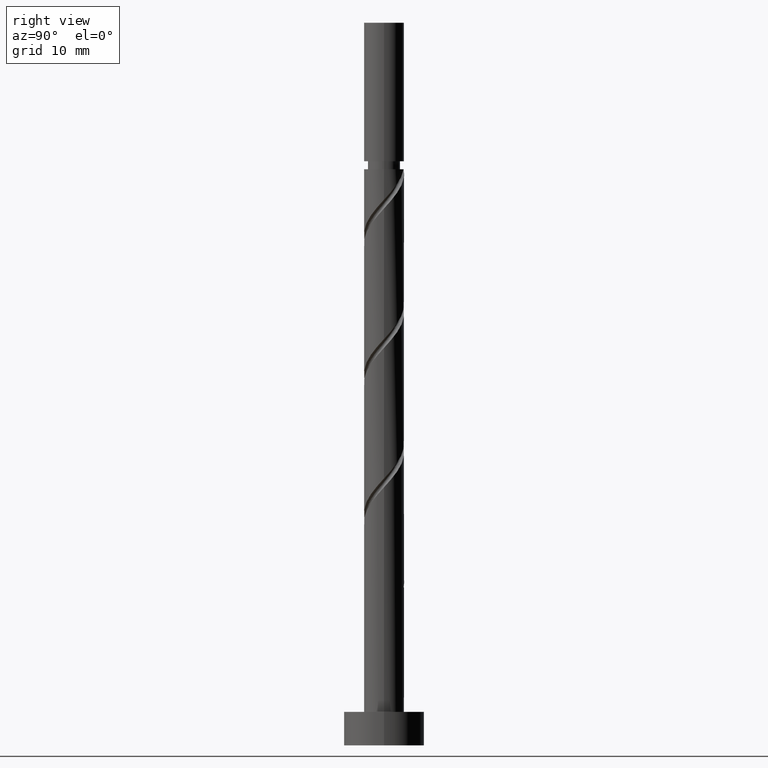
[diagram: clean part render]
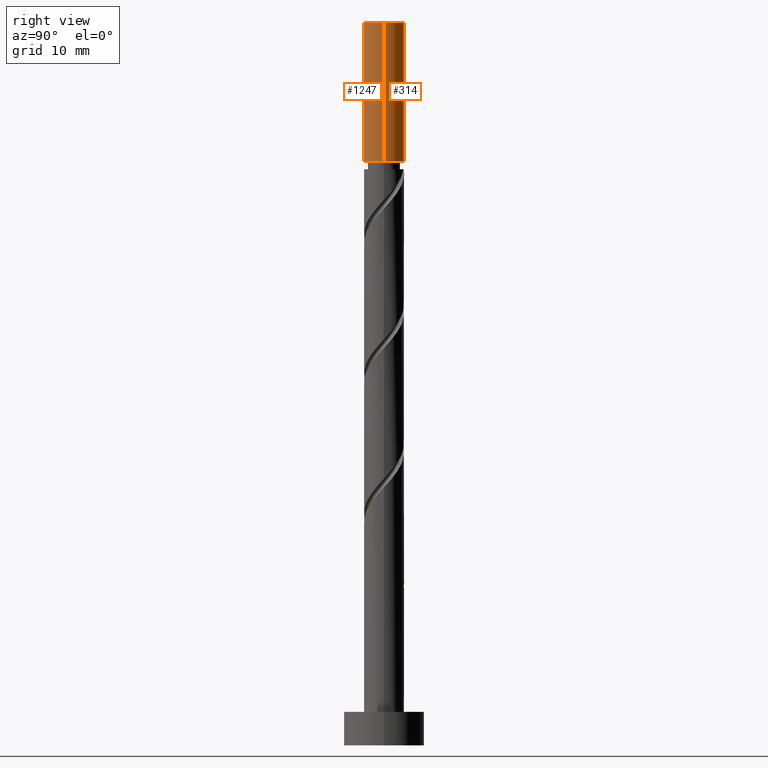
[diagram: same view with one multi-face feature highlighted, each face labeled with its STEP entity id]
A machine part, right view. The highlighted faces form ONE feature: a constant-radius fillet chain: 2 tangent blend faces with common blend radius 3 mm. The faces share edges in the B-rep.
Their STEP definitions:
[1] entity #314 (Cylinder):
#11 = DIRECTION ( 'NONE',  ( -0.000000000000000000, -0.000000000000000000, -1.000000000000000000 ) ) ;
#31 = ORIENTED_EDGE ( 'NONE', *, *, #428, .F. ) ;
#49 = CIRCLE ( 'NONE', #367, 3.000000000000002220 ) ;
#101 = VERTEX_POINT ( 'NONE', #164 ) ;
#119 = CARTESIAN_POINT ( 'NONE',  ( 0.000000000000000000, 0.000000000000000000, 108.0000000000000000 ) ) ;
#164 = CARTESIAN_POINT ( 'NONE',  ( -3.000000000000000444, 0.000000000000000000, 108.0000000000000000 ) ) ;
#206 = CARTESIAN_POINT ( 'NONE',  ( 0.000000000000000000, 0.000000000000000000, 87.29792561489061598 ) ) ;
#228 = LINE ( 'NONE', #1318, #865 ) ;
#236 = CARTESIAN_POINT ( 'NONE',  ( -3.000000000000002220, 0.000000000000000000, 87.29792561489061598 ) ) ;
#314 = ADVANCED_FACE ( 'NONE', ( #702 ), #958, .T. ) ;
#346 = CIRCLE ( 'NONE', #1237, 3.000000000000000444 ) ;
#362 = LINE ( 'NONE', #965, #759 ) ;
#366 = EDGE_LOOP ( 'NONE', ( #31, #822, #1182, #506 ) ) ;
#367 = AXIS2_PLACEMENT_3D ( 'NONE', #206, #1040, #1294 ) ;
#373 = VERTEX_POINT ( 'NONE', #236 ) ;
#398 = EDGE_CURVE ( 'NONE', #1174, #578, #362, .T. ) ;
#428 = EDGE_CURVE ( 'NONE', #1174, #101, #346, .T. ) ;
#441 = DIRECTION ( 'NONE',  ( -0.000000000000000000, -0.000000000000000000, -1.000000000000000000 ) ) ;
#501 = DIRECTION ( 'NONE',  ( -0.000000000000000000, -0.000000000000000000, -1.000000000000000000 ) ) ;
#506 = ORIENTED_EDGE ( 'NONE', *, *, #1364, .F. ) ;
#575 = CARTESIAN_POINT ( 'NONE',  ( 0.000000000000000000, 0.000000000000000000, 108.0000000000000000 ) ) ;
#578 = VERTEX_POINT ( 'NONE', #1495 ) ;
#688 = CARTESIAN_POINT ( 'NONE',  ( 3.000000000000000444, 3.673940397442060361E-16, 108.0000000000000000 ) ) ;
#702 = FACE_OUTER_BOUND ( 'NONE', #366, .T. ) ;
#759 = VECTOR ( 'NONE', #501, 1000.000000000000000 ) ;
#822 = ORIENTED_EDGE ( 'NONE', *, *, #398, .T. ) ;
#852 = DIRECTION ( 'NONE',  ( 1.000000000000000000, 0.000000000000000000, 0.000000000000000000 ) ) ;
#865 = VECTOR ( 'NONE', #11, 1000.000000000000000 ) ;
#958 = CYLINDRICAL_SURFACE ( 'NONE', #1264, 3.000000000000000444 ) ;
#965 = CARTESIAN_POINT ( 'NONE',  ( 3.000000000000000444, 3.673940397442060361E-16, 108.0000000000000000 ) ) ;
#1040 = DIRECTION ( 'NONE',  ( -0.000000000000000000, -0.000000000000000000, -1.000000000000000000 ) ) ;
#1156 = EDGE_CURVE ( 'NONE', #373, #578, #49, .T. ) ;
#1174 = VERTEX_POINT ( 'NONE', #688 ) ;
#1182 = ORIENTED_EDGE ( 'NONE', *, *, #1156, .F. ) ;
#1237 = AXIS2_PLACEMENT_3D ( 'NONE', #119, #1348, #852 ) ;
#1264 = AXIS2_PLACEMENT_3D ( 'NONE', #575, #441, #1441 ) ;
#1294 = DIRECTION ( 'NONE',  ( -1.000000000000000000, 0.000000000000000000, 0.000000000000000000 ) ) ;
#1318 = CARTESIAN_POINT ( 'NONE',  ( -3.000000000000000444, 0.000000000000000000, 108.0000000000000000 ) ) ;
#1348 = DIRECTION ( 'NONE',  ( 0.000000000000000000, 0.000000000000000000, 1.000000000000000000 ) ) ;
#1364 = EDGE_CURVE ( 'NONE', #101, #373, #228, .T. ) ;
#1441 = DIRECTION ( 'NONE',  ( -1.000000000000000000, 0.000000000000000000, 0.000000000000000000 ) ) ;
#1495 = CARTESIAN_POINT ( 'NONE',  ( 3.000000000000002665, 3.673940397442062333E-16, 87.29792561489061598 ) ) ;
[2] entity #1247 (Cylinder):
#11 = DIRECTION ( 'NONE',  ( -0.000000000000000000, -0.000000000000000000, -1.000000000000000000 ) ) ;
#101 = VERTEX_POINT ( 'NONE', #164 ) ;
#110 = CYLINDRICAL_SURFACE ( 'NONE', #642, 3.000000000000000444 ) ;
#142 = ORIENTED_EDGE ( 'NONE', *, *, #1364, .T. ) ;
#164 = CARTESIAN_POINT ( 'NONE',  ( -3.000000000000000444, 0.000000000000000000, 108.0000000000000000 ) ) ;
#228 = LINE ( 'NONE', #1318, #865 ) ;
#236 = CARTESIAN_POINT ( 'NONE',  ( -3.000000000000002220, 0.000000000000000000, 87.29792561489061598 ) ) ;
#276 = ORIENTED_EDGE ( 'NONE', *, *, #779, .F. ) ;
#280 = CIRCLE ( 'NONE', #1185, 3.000000000000000444 ) ;
#355 = DIRECTION ( 'NONE',  ( -0.000000000000000000, -0.000000000000000000, -1.000000000000000000 ) ) ;
#362 = LINE ( 'NONE', #965, #759 ) ;
#373 = VERTEX_POINT ( 'NONE', #236 ) ;
#398 = EDGE_CURVE ( 'NONE', #1174, #578, #362, .T. ) ;
#501 = DIRECTION ( 'NONE',  ( -0.000000000000000000, -0.000000000000000000, -1.000000000000000000 ) ) ;
#553 = DIRECTION ( 'NONE',  ( -0.000000000000000000, -0.000000000000000000, -1.000000000000000000 ) ) ;
#578 = VERTEX_POINT ( 'NONE', #1495 ) ;
#580 = FACE_OUTER_BOUND ( 'NONE', #1058, .T. ) ;
#612 = CIRCLE ( 'NONE', #838, 3.000000000000002220 ) ;
#623 = EDGE_CURVE ( 'NONE', #578, #373, #612, .T. ) ;
#642 = AXIS2_PLACEMENT_3D ( 'NONE', #1325, #355, #1562 ) ;
#688 = CARTESIAN_POINT ( 'NONE',  ( 3.000000000000000444, 3.673940397442060361E-16, 108.0000000000000000 ) ) ;
#743 = ORIENTED_EDGE ( 'NONE', *, *, #623, .F. ) ;
#759 = VECTOR ( 'NONE', #501, 1000.000000000000000 ) ;
#779 = EDGE_CURVE ( 'NONE', #101, #1174, #280, .T. ) ;
#838 = AXIS2_PLACEMENT_3D ( 'NONE', #1306, #553, #1403 ) ;
#854 = DIRECTION ( 'NONE',  ( 1.000000000000000000, 0.000000000000000000, 0.000000000000000000 ) ) ;
#865 = VECTOR ( 'NONE', #11, 1000.000000000000000 ) ;
#965 = CARTESIAN_POINT ( 'NONE',  ( 3.000000000000000444, 3.673940397442060361E-16, 108.0000000000000000 ) ) ;
#1058 = EDGE_LOOP ( 'NONE', ( #1098, #276, #142, #743 ) ) ;
#1066 = CARTESIAN_POINT ( 'NONE',  ( 0.000000000000000000, 0.000000000000000000, 108.0000000000000000 ) ) ;
#1098 = ORIENTED_EDGE ( 'NONE', *, *, #398, .F. ) ;
#1174 = VERTEX_POINT ( 'NONE', #688 ) ;
#1185 = AXIS2_PLACEMENT_3D ( 'NONE', #1066, #1554, #854 ) ;
#1247 = ADVANCED_FACE ( 'NONE', ( #580 ), #110, .T. ) ;
#1306 = CARTESIAN_POINT ( 'NONE',  ( 0.000000000000000000, 0.000000000000000000, 87.29792561489061598 ) ) ;
#1318 = CARTESIAN_POINT ( 'NONE',  ( -3.000000000000000444, 0.000000000000000000, 108.0000000000000000 ) ) ;
#1325 = CARTESIAN_POINT ( 'NONE',  ( 0.000000000000000000, 0.000000000000000000, 108.0000000000000000 ) ) ;
#1364 = EDGE_CURVE ( 'NONE', #101, #373, #228, .T. ) ;
#1403 = DIRECTION ( 'NONE',  ( -1.000000000000000000, 0.000000000000000000, 0.000000000000000000 ) ) ;
#1495 = CARTESIAN_POINT ( 'NONE',  ( 3.000000000000002665, 3.673940397442062333E-16, 87.29792561489061598 ) ) ;
#1554 = DIRECTION ( 'NONE',  ( 0.000000000000000000, 0.000000000000000000, 1.000000000000000000 ) ) ;
#1562 = DIRECTION ( 'NONE',  ( -1.000000000000000000, 0.000000000000000000, 0.000000000000000000 ) ) ;